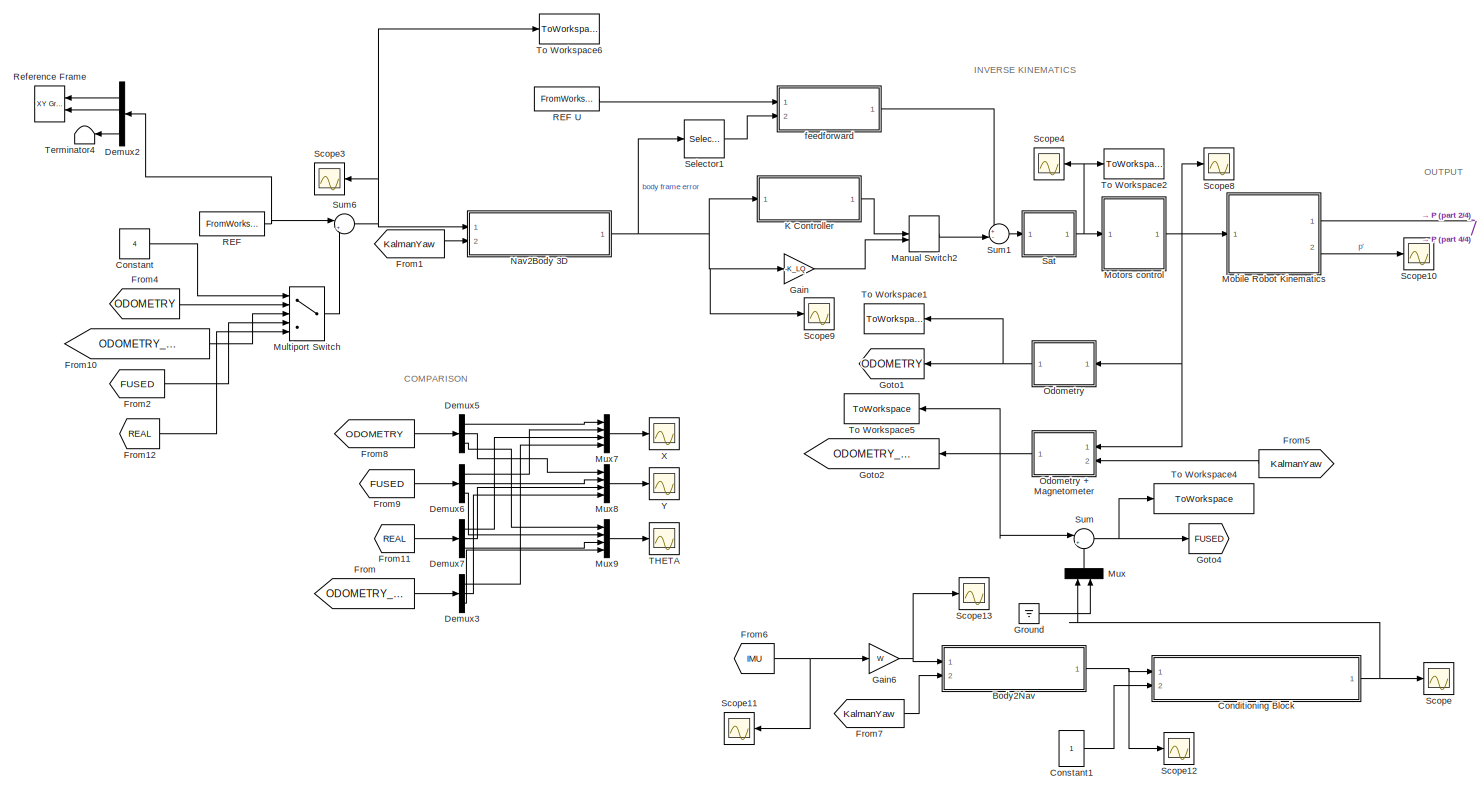
[diagram: root canvas - part 1/4, full width, top band]
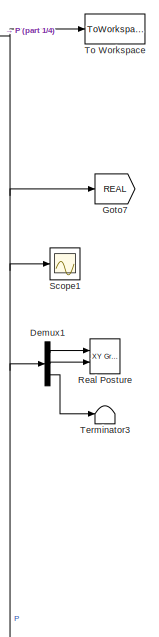
[diagram: root canvas - part 2/4, top right region]
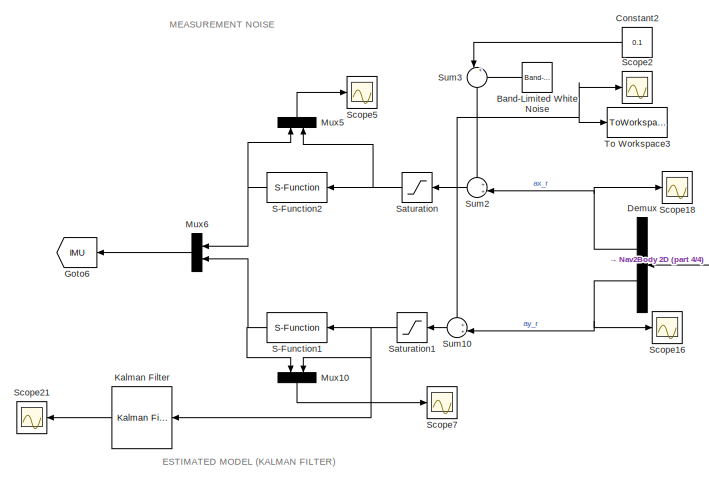
[diagram: root canvas - part 3/4, middle left region]
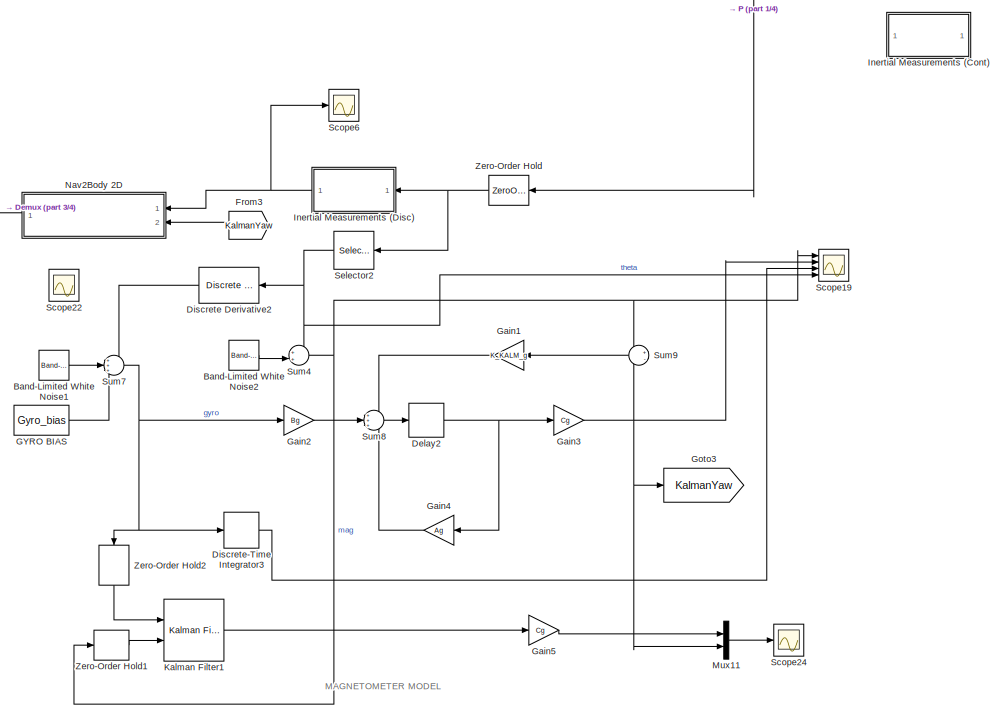
[diagram: root canvas - part 4/4, bottom right region]
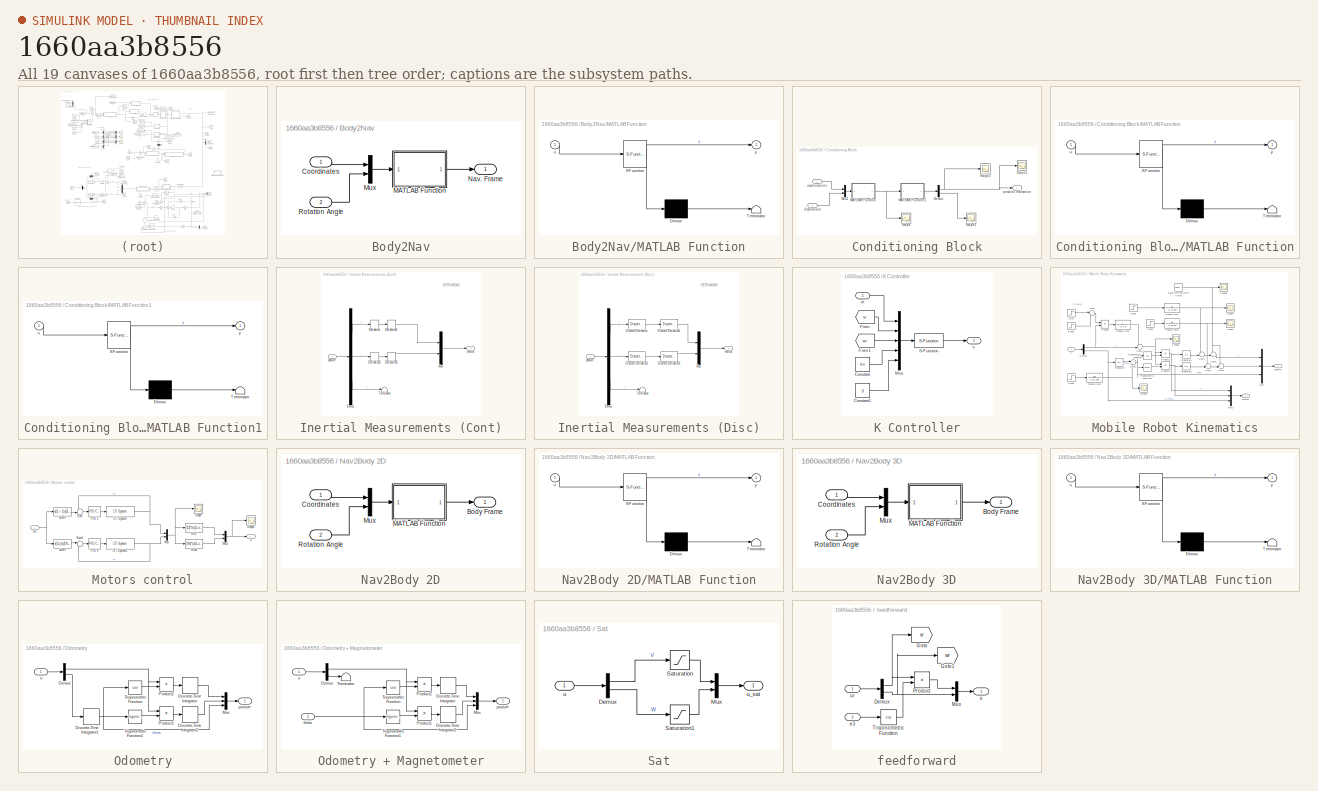
[diagram: thumbnail index - all 19 canvases of the model, root first then tree order]
MODEL slx_1660aa3b8556
KIND model
CONFIG AbsTol = auto
CONFIG EnableMultiTasking = off
CONFIG FixedStep = Ts_compute
CONFIG MaxStep = auto
CONFIG MinStep = auto
CONFIG RelTol = 1e-3
CONFIG SampleTimeConstraint = Unconstrained
CONFIG Solver = VariableStepAuto
CONFIG SolverName = VariableStepAuto
CONFIG StartTime = 0.0
CONFIG StopTime = Tsim
BLOCK [Reference] Band-Limited White Noise  REF=simulink/Sources/Band-Limited
White Noise
  Ports = [0, 1]
  SourceBlock = simulink/Sources/Band-Limited\nWhite Noise
  SourceProductBaseCode = SL
  SourceProductName = Simulink
  SourceType = Band-Limited White Noise.
BLOCK [Reference] Band-Limited White Noise1  REF=simulink/Sources/Band-Limited
White Noise
  Ports = [0, 1]
  SourceBlock = simulink/Sources/Band-Limited\nWhite Noise
  SourceProductBaseCode = SL
  SourceProductName = Simulink
  SourceType = Band-Limited White Noise.
BLOCK [Reference] Band-Limited White Noise2  REF=simulink/Sources/Band-Limited
White Noise
  Ports = [0, 1]
  SourceBlock = simulink/Sources/Band-Limited\nWhite Noise
  SourceProductBaseCode = SL
  SourceProductName = Simulink
  SourceType = Band-Limited White Noise.
BLOCK [SubSystem] Body2Nav
  Ports = [2, 1]
  RequestExecContextInheritance = off
  Variant = off
BLOCK [Inport] Body2Nav/Coordinates
  IconDisplay = Port number
BLOCK [SubSystem] Body2Nav/MATLAB Function
  ErrorFcn = Stateflow.Translate.translate
  PermitHierarchicalResolution = ExplicitOnly
  Ports = [1, 1]
  RequestExecContextInheritance = off
  SFBlockType = MATLAB Function
  TreatAsAtomicUnit = on
  Variant = off
BLOCK [Demux] Body2Nav/MATLAB Function/ Demux 
  Outputs = 1
  Ports = [1, 1]
BLOCK [S-Function] Body2Nav/MATLAB Function/ SFunction 
  EnableBusSupport = on
  FunctionName = sf_sfun
  PortCounts = [1 2]
  Ports = [1, 2]
  SFcnIsStateOwnerBlock = off
  SFunctionDeploymentMode = off
  Tag = Stateflow S-Function Robot_Sim 5
BLOCK [Terminator] Body2Nav/MATLAB Function/ Terminator 
BLOCK [Inport] Body2Nav/MATLAB Function/u
  IconDisplay = Port number
BLOCK [Outport] Body2Nav/MATLAB Function/y
  IconDisplay = Port number
BLOCK [Mux] Body2Nav/Mux
  DisplayOption = bar
  Inputs = 2
  Ports = [2, 1]
BLOCK [Outport] Body2Nav/Nav. Frame
  IconDisplay = Port number
BLOCK [Inport] Body2Nav/Rotation Angle
  IconDisplay = Port number
  Port = 2
BLOCK [SubSystem] Conditioning Block
  Ports = [2, 1]
  RequestExecContextInheritance = off
  Variant = off
BLOCK [Demux] Conditioning Block/Demux
  DisplayOption = bar
  Outputs = 2
  Ports = [1, 2]
BLOCK [SubSystem] Conditioning Block/MATLAB Function
  ErrorFcn = Stateflow.Translate.translate
  PermitHierarchicalResolution = ExplicitOnly
  Ports = [1, 1]
  RequestExecContextInheritance = off
  SFBlockType = MATLAB Function
  TreatAsAtomicUnit = on
  Variant = off
BLOCK [Demux] Conditioning Block/MATLAB Function/ Demux 
  Outputs = 1
  Ports = [1, 1]
BLOCK [S-Function] Conditioning Block/MATLAB Function/ SFunction 
  EnableBusSupport = on
  FunctionName = sf_sfun
  PortCounts = [1 2]
  Ports = [1, 2]
  SFcnIsStateOwnerBlock = off
  SFunctionDeploymentMode = off
  Tag = Stateflow S-Function Robot_Sim 3
BLOCK [Terminator] Conditioning Block/MATLAB Function/ Terminator 
BLOCK [Inport] Conditioning Block/MATLAB Function/u
  IconDisplay = Port number
BLOCK [Outport] Conditioning Block/MATLAB Function/y
  IconDisplay = Port number
BLOCK [SubSystem] Conditioning Block/MATLAB Function1
  ErrorFcn = Stateflow.Translate.translate
  PermitHierarchicalResolution = ExplicitOnly
  Ports = [1, 1]
  RequestExecContextInheritance = off
  SFBlockType = MATLAB Function
  TreatAsAtomicUnit = on
  Variant = off
BLOCK [Demux] Conditioning Block/MATLAB Function1/ Demux 
  Outputs = 1
  Ports = [1, 1]
BLOCK [S-Function] Conditioning Block/MATLAB Function1/ SFunction 
  EnableBusSupport = on
  FunctionName = sf_sfun
  PortCounts = [1 2]
  Ports = [1, 2]
  SFcnIsStateOwnerBlock = off
  SFunctionDeploymentMode = off
  Tag = Stateflow S-Function Robot_Sim 4
BLOCK [Terminator] Conditioning Block/MATLAB Function1/ Terminator 
BLOCK [Inport] Conditioning Block/MATLAB Function1/u
  IconDisplay = Port number
BLOCK [Outport] Conditioning Block/MATLAB Function1/y
  IconDisplay = Port number
BLOCK [Mux] Conditioning Block/Mux1
  DisplayOption = bar
  Inputs = 2
  Ports = [2, 1]
BLOCK [Scope] Conditioning Block/Scope
  NumInputPorts = 1
  Ports = [1]
  ScopeSpecificationString = Simulink.scopes.TimeScopeBlockCfg('CurrentConfiguration', extmgr.ConfigurationSet(extmgr.Configuration('Core','General UI',true),extmgr.Configuration('Core','Source UI',true),extmgr.Configuration('Sources','WiredSimulink',true,'DataLoggingVariableName','ScopeData2'),extmgr.Configuration('Visuals','Time Domain',true,'SerializedDisplays',{struct('MinYLimReal','-1.22416','MaxYLimReal','11.01748','YLa...<+1454ch>
BLOCK [Scope] Conditioning Block/Scope1
  NumInputPorts = 1
  Ports = [1]
  ScopeSpecificationString = Simulink.scopes.TimeScopeBlockCfg('CurrentConfiguration', extmgr.ConfigurationSet(extmgr.Configuration('Core','General UI',true),extmgr.Configuration('Core','Source UI',true),extmgr.Configuration('Sources','WiredSimulink',true,'DataLoggingVariableName','ScopeData3'),extmgr.Configuration('Visuals','Time Domain',true,'SerializedDisplays',{struct('MinYLimReal','-0.13744','MaxYLimReal','1.23697','YLab...<+1409ch>
BLOCK [Scope] Conditioning Block/Scope2
  NumInputPorts = 1
  Ports = [1]
  ScopeSpecificationString = Simulink.scopes.TimeScopeBlockCfg('CurrentConfiguration', extmgr.ConfigurationSet(extmgr.Configuration('Core','General UI',true),extmgr.Configuration('Core','Source UI',true),extmgr.Configuration('Sources','WiredSimulink',true,'DataLoggingVariableName','ScopeData6'),extmgr.Configuration('Visuals','Time Domain',true,'SerializedDisplays',{struct('MinYLimReal','-0.02497','MaxYLimReal','0.22469','YLab...<+1409ch>
BLOCK [Scope] Conditioning Block/Scope3
  NumInputPorts = 1
  Ports = [1]
  ScopeSpecificationString = Simulink.scopes.TimeScopeBlockCfg('CurrentConfiguration', extmgr.ConfigurationSet(extmgr.Configuration('Core','General UI',true),extmgr.Configuration('Core','Source UI',true),extmgr.Configuration('Sources','WiredSimulink',true,'DataLoggingVariableName','ScopeData7'),extmgr.Configuration('Visuals','Time Domain',true,'SerializedDisplays',{struct('MinYLimReal','-0.02497','MaxYLimReal','0.22469','YLab...<+1403ch>
BLOCK [Inport] Conditioning Block/accelerations
  IconDisplay = Port number
BLOCK [Inport] Conditioning Block/discriminant
  IconDisplay = Port number
  Port = 2
BLOCK [Outport] Conditioning Block/position estimation
  IconDisplay = Port number
BLOCK [Constant] Constant
  Value = 4
BLOCK [Constant] Constant1
BLOCK [Constant] Constant2
  Value = 0.1
BLOCK [Delay] Delay2
  DelayLength = 1
  InputPortMap = u0
  Ports = [1, 1]
BLOCK [Demux] Demux
  DisplayOption = bar
  Outputs = 2
  Ports = [1, 2]
BLOCK [Demux] Demux1
  DisplayOption = bar
  Outputs = 3
  Ports = [1, 3]
BLOCK [Demux] Demux2
  DisplayOption = bar
  Outputs = 3
  Ports = [1, 3]
BLOCK [Demux] Demux3
  DisplayOption = bar
  Outputs = 3
  Ports = [1, 3]
BLOCK [Demux] Demux5
  DisplayOption = bar
  Outputs = 3
  Ports = [1, 3]
BLOCK [Demux] Demux6
  DisplayOption = bar
  Outputs = 3
  Ports = [1, 3]
BLOCK [Demux] Demux7
  DisplayOption = bar
  Outputs = 3
  Ports = [1, 3]
BLOCK [Reference] Discrete Derivative2  REF=simulink/Discrete/Discrete Derivative
  Ports = [1, 1]
  SourceBlock = simulink/Discrete/Discrete Derivative
  SourceProductBaseCode = SL
  SourceProductName = Simulink
  SourceType = Discrete Derivative
BLOCK [DiscreteIntegrator] Discrete-Time Integrator3
  ICPrevOutput = DiscIntNeverNeededParam
  ICPrevScaledInput = DiscIntNeverNeededParam
  InitialConditionSetting = State (most efficient)
  Ports = [1, 1]
  SampleTime = -1
BLOCK [From] From
  GotoTag = ODOMETRY_MAG_GYRO
BLOCK [From] From1
  GotoTag = KalmanYaw
BLOCK [From] From10
  GotoTag = ODOMETRY_MAG_GYRO
BLOCK [From] From11
  GotoTag = REAL
BLOCK [From] From12
  GotoTag = REAL
BLOCK [From] From2
  GotoTag = FUSED
BLOCK [From] From3
  GotoTag = KalmanYaw
BLOCK [From] From4
  GotoTag = ODOMETRY
BLOCK [From] From5
  GotoTag = KalmanYaw
BLOCK [From] From6
  GotoTag = IMU
BLOCK [From] From7
  GotoTag = KalmanYaw
BLOCK [From] From8
  GotoTag = ODOMETRY
BLOCK [From] From9
  GotoTag = FUSED
BLOCK [Constant] GYRO BIAS
  Value = Gyro_bias
BLOCK [Gain] Gain
  Gain = -K_LQ
  Multiplication = Matrix(K*u)
  OutDataTypeStr = Inherit: Inherit via internal rule
  ParamDataTypeStr = Inherit: Inherit via internal rule
  SaturateOnIntegerOverflow = off
BLOCK [Gain] Gain1
  Gain = K_KALM_g
  Multiplication = Matrix(K*u)
  OutDataTypeStr = Inherit: Inherit via internal rule
  ParamDataTypeStr = Inherit: Inherit via internal rule
  SaturateOnIntegerOverflow = off
BLOCK [Gain] Gain2
  Gain = Bg
  Multiplication = Matrix(K*u)
  OutDataTypeStr = Inherit: Inherit via internal rule
  ParamDataTypeStr = Inherit: Inherit via internal rule
  SaturateOnIntegerOverflow = off
BLOCK [Gain] Gain3
  Gain = Cg
  Multiplication = Matrix(K*u)
  OutDataTypeStr = Inherit: Inherit via internal rule
  ParamDataTypeStr = Inherit: Inherit via internal rule
  SaturateOnIntegerOverflow = off
BLOCK [Gain] Gain4
  Gain = Ag
  Multiplication = Matrix(K*u)
  OutDataTypeStr = Inherit: Inherit via internal rule
  ParamDataTypeStr = Inherit: Inherit via internal rule
  SaturateOnIntegerOverflow = off
BLOCK [Gain] Gain5
  Gain = Cg
  Multiplication = Matrix(K*u)
  OutDataTypeStr = Inherit: Inherit via internal rule
  ParamDataTypeStr = Inherit: Inherit via internal rule
  SaturateOnIntegerOverflow = off
BLOCK [Gain] Gain6
  Gain = W
  Multiplication = Matrix(K*u)
  OutDataTypeStr = Inherit: Inherit via internal rule
  ParamDataTypeStr = Inherit: Inherit via internal rule
  SaturateOnIntegerOverflow = off
BLOCK [Goto] Goto1
  GotoTag = ODOMETRY
BLOCK [Goto] Goto2
  GotoTag = ODOMETRY_MAG_GYRO
BLOCK [Goto] Goto3
  GotoTag = KalmanYaw
BLOCK [Goto] Goto4
  GotoTag = FUSED
BLOCK [Goto] Goto6
  GotoTag = IMU
BLOCK [Goto] Goto7
  GotoTag = REAL
BLOCK [Ground] Ground
BLOCK [SubSystem] Inertial Measurements (Cont)
  Commented = on
  Ports = [1, 1]
  RequestExecContextInheritance = off
  Variant = off
BLOCK [Demux] Inertial Measurements (Cont)/Demux
  DisplayOption = bar
  Outputs = 3
  Ports = [1, 3]
BLOCK [Derivative] Inertial Measurements (Cont)/Derivative
BLOCK [Derivative] Inertial Measurements (Cont)/Derivative1
BLOCK [Derivative] Inertial Measurements (Cont)/Derivative2
BLOCK [Derivative] Inertial Measurements (Cont)/Derivative3
BLOCK [Mux] Inertial Measurements (Cont)/Mux
  DisplayOption = bar
  Inputs = 2
  Ports = [2, 1]
BLOCK [Terminator] Inertial Measurements (Cont)/Terminator
BLOCK [Outport] Inertial Measurements (Cont)/inercial
  IconDisplay = Port number
BLOCK [Inport] Inertial Measurements (Cont)/posture
  IconDisplay = Port number
BLOCK [SubSystem] Inertial Measurements (Disc)
  Ports = [1, 1]
  RequestExecContextInheritance = off
  Variant = off
BLOCK [Demux] Inertial Measurements (Disc)/Demux
  DisplayOption = bar
  Outputs = 3
  Ports = [1, 3]
BLOCK [Reference] Inertial Measurements (Disc)/Discrete Derivative  REF=simulink/Discrete/Discrete Derivative
  Ports = [1, 1]
  SourceBlock = simulink/Discrete/Discrete Derivative
  SourceProductBaseCode = SL
  SourceProductName = Simulink
  SourceType = Discrete Derivative
BLOCK [Reference] Inertial Measurements (Disc)/Discrete Derivative1  REF=simulink/Discrete/Discrete Derivative
  Ports = [1, 1]
  SourceBlock = simulink/Discrete/Discrete Derivative
  SourceProductBaseCode = SL
  SourceProductName = Simulink
  SourceType = Discrete Derivative
BLOCK [Reference] Inertial Measurements (Disc)/Discrete Derivative2  REF=simulink/Discrete/Discrete Derivative
  Ports = [1, 1]
  SourceBlock = simulink/Discrete/Discrete Derivative
  SourceProductBaseCode = SL
  SourceProductName = Simulink
  SourceType = Discrete Derivative
BLOCK [Reference] Inertial Measurements (Disc)/Discrete Derivative3  REF=simulink/Discrete/Discrete Derivative
  Ports = [1, 1]
  SourceBlock = simulink/Discrete/Discrete Derivative
  SourceProductBaseCode = SL
  SourceProductName = Simulink
  SourceType = Discrete Derivative
BLOCK [Mux] Inertial Measurements (Disc)/Mux
  DisplayOption = bar
  Inputs = 2
  Ports = [2, 1]
BLOCK [Terminator] Inertial Measurements (Disc)/Terminator
BLOCK [Outport] Inertial Measurements (Disc)/inercial
  IconDisplay = Port number
BLOCK [Inport] Inertial Measurements (Disc)/posture
  IconDisplay = Port number
BLOCK [SubSystem] K Controller
  Ports = [1, 1]
  RequestExecContextInheritance = off
  Variant = off
BLOCK [Constant] K Controller/Constant
  Value = ksi
BLOCK [Constant] K Controller/Constant1
  Value = g
BLOCK [From] K Controller/From
  GotoTag = vr
  TagVisibility = global
BLOCK [From] K Controller/From1
  GotoTag = wr
  TagVisibility = global
BLOCK [Mux] K Controller/Mux
  DisplayOption = bar
  Inputs = 5
  Ports = [5, 1]
BLOCK [S-Function] K Controller/S-Function
  EnableBusSupport = off
  FunctionName = ControllerK
  Parameters = Ts
  Ports = [1, 1]
  SFcnIsStateOwnerBlock = off
  SFunctionDeploymentMode = off
BLOCK [Inport] K Controller/er
  IconDisplay = Port number
BLOCK [Outport] K Controller/v
  IconDisplay = Port number
BLOCK [Reference] Kalman Filter  REF=ctrlSharedLib/Kalman Filter
  Commented = on
  Ports = [1, 1]
  SourceBlock = ctrlSharedLib/Kalman Filter
  SourceType = ctrlKalmanFilter
BLOCK [Reference] Kalman Filter1  REF=ctrlSharedLib/Kalman Filter
  Ports = [2, 1]
  SourceBlock = ctrlSharedLib/Kalman Filter
  SourceType = ctrlKalmanFilter
BLOCK [ManualSwitch] Manual Switch2
  CurrentSetting = 0
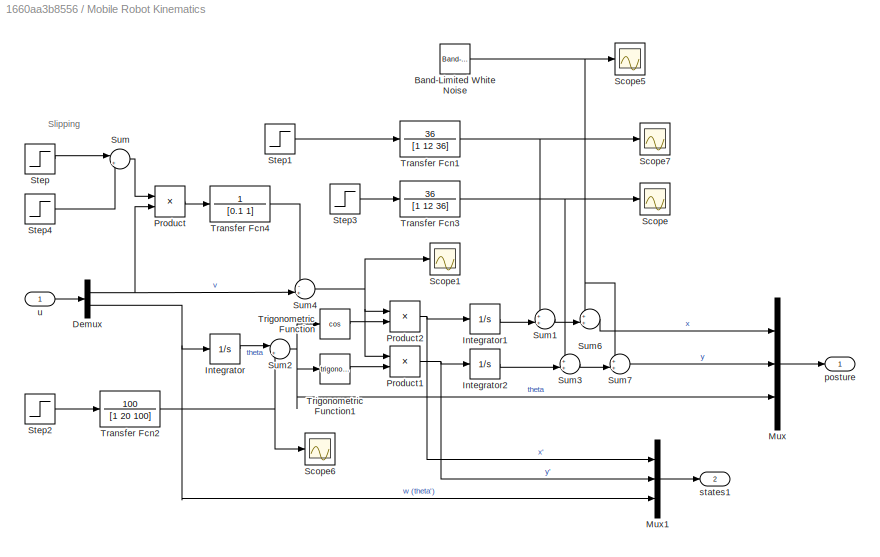
BLOCK [SubSystem] Mobile Robot Kinematics
  Ports = [1, 2]
  RequestExecContextInheritance = off
  Variant = off
BLOCK [Reference] Mobile Robot Kinematics/Band-Limited White Noise  REF=simulink/Sources/Band-Limited
White Noise
  Ports = [0, 1]
  SourceBlock = simulink/Sources/Band-Limited\nWhite Noise
  SourceProductBaseCode = SL
  SourceProductName = Simulink
  SourceType = Band-Limited White Noise.
BLOCK [Demux] Mobile Robot Kinematics/Demux
  DisplayOption = bar
  Outputs = 2
  Ports = [1, 2]
BLOCK [Integrator] Mobile Robot Kinematics/Integrator
  Ports = [1, 1]
BLOCK [Integrator] Mobile Robot Kinematics/Integrator1
  Ports = [1, 1]
BLOCK [Integrator] Mobile Robot Kinematics/Integrator2
  Ports = [1, 1]
BLOCK [Mux] Mobile Robot Kinematics/Mux
  DisplayOption = bar
  Inputs = 3
  Ports = [3, 1]
BLOCK [Mux] Mobile Robot Kinematics/Mux1
  DisplayOption = bar
  Inputs = 3
  Ports = [3, 1]
BLOCK [Product] Mobile Robot Kinematics/Product
  InputSameDT = off
  OutDataTypeStr = Inherit: Inherit via internal rule
  Ports = [2, 1]
  RndMeth = Floor
  SaturateOnIntegerOverflow = off
BLOCK [Product] Mobile Robot Kinematics/Product1
  InputSameDT = off
  OutDataTypeStr = Inherit: Inherit via internal rule
  Ports = [2, 1]
  RndMeth = Floor
  SaturateOnIntegerOverflow = off
BLOCK [Product] Mobile Robot Kinematics/Product2
  InputSameDT = off
  OutDataTypeStr = Inherit: Inherit via internal rule
  Ports = [2, 1]
  RndMeth = Floor
  SaturateOnIntegerOverflow = off
BLOCK [Scope] Mobile Robot Kinematics/Scope
  NumInputPorts = 1
  Ports = [1]
  ScopeSpecificationString = Simulink.scopes.TimeScopeBlockCfg('CurrentConfiguration', extmgr.ConfigurationSet(extmgr.Configuration('Core','General UI',true),extmgr.Configuration('Core','Source UI',true),extmgr.Configuration('Sources','WiredSimulink',true,'DataLoggingVariableName','ScopeData5'),extmgr.Configuration('Visuals','Time Domain',true,'SerializedDisplays',{struct('MinYLimReal','-0.0625','MaxYLimReal','0.5625','YLabel...<+1414ch>
BLOCK [Scope] Mobile Robot Kinematics/Scope1
  NumInputPorts = 1
  Ports = [1]
  ScopeSpecificationString = Simulink.scopes.TimeScopeBlockCfg('CurrentConfiguration', extmgr.ConfigurationSet(extmgr.Configuration('Core','General UI',true),extmgr.Configuration('Core','Source UI',true),extmgr.Configuration('Sources','WiredSimulink',true,'DataLoggingVariableName','ScopeData4'),extmgr.Configuration('Visuals','Time Domain',true,'SerializedDisplays',{struct('MinYLimReal','-0.08626','MaxYLimReal','0.76805','YLab...<+1382ch>
BLOCK [Scope] Mobile Robot Kinematics/Scope5
  NumInputPorts = 1
  Ports = [1]
  ScopeSpecificationString = Simulink.scopes.TimeScopeBlockCfg('CurrentConfiguration', extmgr.ConfigurationSet(extmgr.Configuration('Core','General UI',true),extmgr.Configuration('Core','Source UI',true),extmgr.Configuration('Sources','WiredSimulink',true,'DataLoggingVariableName','ScopeData1'),extmgr.Configuration('Visuals','Time Domain',true,'SerializedDisplays',{struct('MinYLimReal','-1.00000','MaxYLimReal','1.00000','YLab...<+1431ch>
BLOCK [Scope] Mobile Robot Kinematics/Scope6
  NumInputPorts = 1
  Ports = [1]
  ScopeSpecificationString = Simulink.scopes.TimeScopeBlockCfg('CurrentConfiguration', extmgr.ConfigurationSet(extmgr.Configuration('Core','General UI',true),extmgr.Configuration('Core','Source UI',true),extmgr.Configuration('Sources','WiredSimulink',true,'DataLoggingVariableName','ScopeData1'),extmgr.Configuration('Visuals','Time Domain',true,'SerializedDisplays',{struct('MinYLimReal','-0.0625','MaxYLimReal','0.5625','YLabel...<+1395ch>
BLOCK [Scope] Mobile Robot Kinematics/Scope7
  NumInputPorts = 1
  Ports = [1]
  ScopeSpecificationString = Simulink.scopes.TimeScopeBlockCfg('CurrentConfiguration', extmgr.ConfigurationSet(extmgr.Configuration('Core','General UI',true),extmgr.Configuration('Core','Source UI',true),extmgr.Configuration('Sources','WiredSimulink',true,'DataLoggingVariableName','ScopeData11'),extmgr.Configuration('Visuals','Time Domain',true,'SerializedDisplays',{struct('MinYLimReal','-0.06862','MaxYLimReal','0.72713','YLa...<+1421ch>
BLOCK [Step] Mobile Robot Kinematics/Step
  SampleTime = 0
  Time = 25
BLOCK [Step] Mobile Robot Kinematics/Step1
  After = 0.5
  SampleTime = 0
  Time = Tsim/2
BLOCK [Step] Mobile Robot Kinematics/Step2
  After = 0.5
  SampleTime = 0
  Time = Tsim/4
BLOCK [Step] Mobile Robot Kinematics/Step3
  After = 0.5
  SampleTime = 0
  Time = Tsim/4
BLOCK [Step] Mobile Robot Kinematics/Step4
  After = -1
  SampleTime = 0
  Time = 27
BLOCK [Sum] Mobile Robot Kinematics/Sum
  IconShape = round
  InputSameDT = off
  Inputs = |++
  OutDataTypeStr = Inherit: Inherit via internal rule
  Ports = [2, 1]
  SaturateOnIntegerOverflow = off
BLOCK [Sum] Mobile Robot Kinematics/Sum1
  IconShape = round
  InputSameDT = off
  Inputs = ++|
  OutDataTypeStr = Inherit: Inherit via internal rule
  Ports = [2, 1]
  SaturateOnIntegerOverflow = off
BLOCK [Sum] Mobile Robot Kinematics/Sum2
  IconShape = round
  InputSameDT = off
  Inputs = |++
  OutDataTypeStr = Inherit: Inherit via internal rule
  Ports = [2, 1]
  SaturateOnIntegerOverflow = off
BLOCK [Sum] Mobile Robot Kinematics/Sum3
  IconShape = round
  InputSameDT = off
  Inputs = ++|
  OutDataTypeStr = Inherit: Inherit via internal rule
  Ports = [2, 1]
  SaturateOnIntegerOverflow = off
BLOCK [Sum] Mobile Robot Kinematics/Sum4
  IconShape = round
  InputSameDT = off
  Inputs = -+|
  OutDataTypeStr = Inherit: Inherit via internal rule
  Ports = [2, 1]
  SaturateOnIntegerOverflow = off
BLOCK [Sum] Mobile Robot Kinematics/Sum6
  IconShape = round
  InputSameDT = off
  Inputs = ++|
  OutDataTypeStr = Inherit: Inherit via internal rule
  Ports = [2, 1]
  SaturateOnIntegerOverflow = off
BLOCK [Sum] Mobile Robot Kinematics/Sum7
  IconShape = round
  InputSameDT = off
  Inputs = ++|
  OutDataTypeStr = Inherit: Inherit via internal rule
  Ports = [2, 1]
  SaturateOnIntegerOverflow = off
BLOCK [TransferFcn] Mobile Robot Kinematics/Transfer Fcn1
  Denominator = [1 12 36]
  Numerator = 36
BLOCK [TransferFcn] Mobile Robot Kinematics/Transfer Fcn2
  Denominator = [1 20 100]
  Numerator = 100
BLOCK [TransferFcn] Mobile Robot Kinematics/Transfer Fcn3
  Denominator = [1 12 36]
  Numerator = 36
BLOCK [TransferFcn] Mobile Robot Kinematics/Transfer Fcn4
  Commented = on
  Denominator = [0.1 1]
  Numerator = 1
BLOCK [Trigonometry] Mobile Robot Kinematics/Trigonometric Function
  Operator = cos
  Ports = [1, 1]
BLOCK [Trigonometry] Mobile Robot Kinematics/Trigonometric Function1
  Ports = [1, 1]
BLOCK [Outport] Mobile Robot Kinematics/posture
  IconDisplay = Port number
BLOCK [Outport] Mobile Robot Kinematics/states1
  IconDisplay = Port number
  Port = 2
BLOCK [Inport] Mobile Robot Kinematics/u
  IconDisplay = Port number
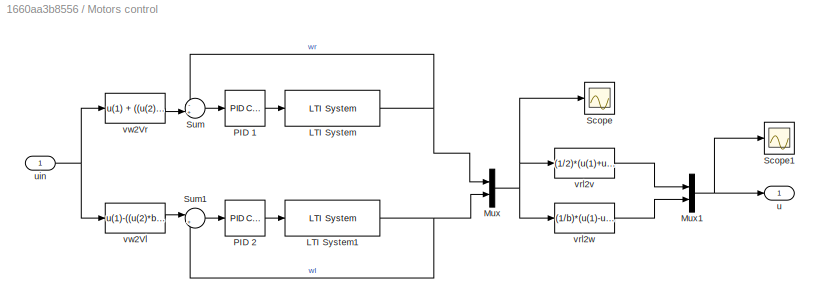
BLOCK [SubSystem] Motors control
  Ports = [1, 1]
  RequestExecContextInheritance = off
  Variant = off
BLOCK [Reference] Motors control/LTI System  REF=cstblocks/LTI System
  Ports = [1, 1]
  SourceBlock = cstblocks/LTI System
  SourceProductBaseCode = CT
  SourceProductName = Control System Toolbox
  SourceType = LTI Block
BLOCK [Reference] Motors control/LTI System1  REF=cstblocks/LTI System
  Ports = [1, 1]
  SourceBlock = cstblocks/LTI System
  SourceProductBaseCode = CT
  SourceProductName = Control System Toolbox
  SourceType = LTI Block
BLOCK [Mux] Motors control/Mux
  DisplayOption = bar
  Inputs = 2
  Ports = [2, 1]
BLOCK [Mux] Motors control/Mux1
  DisplayOption = bar
  Inputs = 2
  Ports = [2, 1]
BLOCK [Reference] Motors control/PID 1  REF=simulink/Continuous/PID Controller
  Ports = [1, 1]
  SourceBlock = simulink/Continuous/PID Controller
  SourceProductBaseCode = SL
  SourceProductName = Simulink
  SourceType = PID 1dof
BLOCK [Reference] Motors control/PID 2  REF=simulink/Continuous/PID Controller
  Ports = [1, 1]
  SourceBlock = simulink/Continuous/PID Controller
  SourceProductBaseCode = SL
  SourceProductName = Simulink
  SourceType = PID 1dof
BLOCK [Scope] Motors control/Scope
  NumInputPorts = 1
  Ports = [1]
  ScopeSpecificationString = Simulink.scopes.TimeScopeBlockCfg('CurrentConfiguration', extmgr.ConfigurationSet(extmgr.Configuration('Core','General UI',true),extmgr.Configuration('Core','Source UI',true),extmgr.Configuration('Sources','WiredSimulink',true,'DataLoggingVariableName','ScopeData5','DataLoggingSaveFormat','StructureWithTime','DataLoggingDecimation','1','DataLoggingDecimateData',true),extmgr.Configuration('Visuals'...<+1668ch>
BLOCK [Scope] Motors control/Scope1
  NumInputPorts = 1
  Ports = [1]
  ScopeSpecificationString = Simulink.scopes.TimeScopeBlockCfg('CurrentConfiguration', extmgr.ConfigurationSet(extmgr.Configuration('Core','General UI',true),extmgr.Configuration('Core','Source UI',true),extmgr.Configuration('Sources','WiredSimulink',true,'DataLoggingVariableName','ScopeData12','DataLoggingSaveFormat','StructureWithTime','DataLoggingDecimation','1','DataLoggingDecimateData',true),extmgr.Configuration('Visuals...<+1679ch>
BLOCK [Sum] Motors control/Sum
  IconShape = round
  InputSameDT = off
  Inputs = -+|
  OutDataTypeStr = Inherit: Inherit via internal rule
  Ports = [2, 1]
  SaturateOnIntegerOverflow = off
BLOCK [Sum] Motors control/Sum1
  IconShape = round
  InputSameDT = off
  Inputs = |+-
  OutDataTypeStr = Inherit: Inherit via internal rule
  Ports = [2, 1]
  SaturateOnIntegerOverflow = off
BLOCK [Outport] Motors control/u
  IconDisplay = Port number
BLOCK [Inport] Motors control/uin
  IconDisplay = Port number
BLOCK [Fcn] Motors control/vrl2v
  Expr = (1/2)*(u(1)+u(2))
BLOCK [Fcn] Motors control/vrl2w
  Expr = (1/b)*(u(1)-u(2))
BLOCK [Fcn] Motors control/vw2Vl
  Expr = u(1)-((u(2)*b)/2)
BLOCK [Fcn] Motors control/vw2Vr
  Expr = u(1) + ((u(2)*b)/2)
BLOCK [MultiPortSwitch] Multiport Switch
  InputSameDT = off
  Inputs = 4
  Ports = [5, 1]
  SaturateOnIntegerOverflow = off
BLOCK [Mux] Mux
  DisplayOption = bar
  Inputs = 2
  Ports = [2, 1]
BLOCK [Mux] Mux10
  DisplayOption = bar
  Inputs = 2
  Ports = [2, 1]
BLOCK [Mux] Mux11
  DisplayOption = bar
  Inputs = 2
  Ports = [2, 1]
BLOCK [Mux] Mux5
  DisplayOption = bar
  Inputs = 2
  Ports = [2, 1]
BLOCK [Mux] Mux6
  DisplayOption = bar
  Inputs = 2
  Ports = [2, 1]
BLOCK [Mux] Mux7
  DisplayOption = bar
  Ports = [4, 1]
BLOCK [Mux] Mux8
  DisplayOption = bar
  Ports = [4, 1]
BLOCK [Mux] Mux9
  DisplayOption = bar
  Ports = [4, 1]
BLOCK [SubSystem] Nav2Body 2D
  Ports = [2, 1]
  RequestExecContextInheritance = off
  Variant = off
BLOCK [Outport] Nav2Body 2D/Body Frame
  IconDisplay = Port number
BLOCK [Inport] Nav2Body 2D/Coordinates
  IconDisplay = Port number
BLOCK [SubSystem] Nav2Body 2D/MATLAB Function
  ErrorFcn = Stateflow.Translate.translate
  PermitHierarchicalResolution = ExplicitOnly
  Ports = [1, 1]
  RequestExecContextInheritance = off
  SFBlockType = MATLAB Function
  TreatAsAtomicUnit = on
  Variant = off
BLOCK [Demux] Nav2Body 2D/MATLAB Function/ Demux 
  Outputs = 1
  Ports = [1, 1]
BLOCK [S-Function] Nav2Body 2D/MATLAB Function/ SFunction 
  EnableBusSupport = on
  FunctionName = sf_sfun
  PortCounts = [1 2]
  Ports = [1, 2]
  SFcnIsStateOwnerBlock = off
  SFunctionDeploymentMode = off
  Tag = Stateflow S-Function Robot_Sim 2
BLOCK [Terminator] Nav2Body 2D/MATLAB Function/ Terminator 
BLOCK [Inport] Nav2Body 2D/MATLAB Function/u
  IconDisplay = Port number
BLOCK [Outport] Nav2Body 2D/MATLAB Function/y
  IconDisplay = Port number
BLOCK [Mux] Nav2Body 2D/Mux
  DisplayOption = bar
  Inputs = 2
  Ports = [2, 1]
BLOCK [Inport] Nav2Body 2D/Rotation Angle
  IconDisplay = Port number
  Port = 2
BLOCK [SubSystem] Nav2Body 3D
  Ports = [2, 1]
  RequestExecContextInheritance = off
  Variant = off
BLOCK [Outport] Nav2Body 3D/Body Frame
  IconDisplay = Port number
BLOCK [Inport] Nav2Body 3D/Coordinates
  IconDisplay = Port number
BLOCK [SubSystem] Nav2Body 3D/MATLAB Function
  ErrorFcn = Stateflow.Translate.translate
  PermitHierarchicalResolution = ExplicitOnly
  Ports = [1, 1]
  RequestExecContextInheritance = off
  SFBlockType = MATLAB Function
  TreatAsAtomicUnit = on
  Variant = off
BLOCK [Demux] Nav2Body 3D/MATLAB Function/ Demux 
  Outputs = 1
  Ports = [1, 1]
BLOCK [S-Function] Nav2Body 3D/MATLAB Function/ SFunction 
  EnableBusSupport = on
  FunctionName = sf_sfun
  PortCounts = [1 2]
  Ports = [1, 2]
  SFcnIsStateOwnerBlock = off
  SFunctionDeploymentMode = off
  Tag = Stateflow S-Function Robot_Sim 1
BLOCK [Terminator] Nav2Body 3D/MATLAB Function/ Terminator 
BLOCK [Inport] Nav2Body 3D/MATLAB Function/u
  IconDisplay = Port number
BLOCK [Outport] Nav2Body 3D/MATLAB Function/y
  IconDisplay = Port number
BLOCK [Mux] Nav2Body 3D/Mux
  DisplayOption = bar
  Inputs = 2
  Ports = [2, 1]
BLOCK [Inport] Nav2Body 3D/Rotation Angle
  IconDisplay = Port number
  Port = 2
BLOCK [SubSystem] Odometry
  Ports = [1, 1]
  RequestExecContextInheritance = off
  Variant = off
BLOCK [SubSystem] Odometry + Magnetometer
  Ports = [2, 1]
  RequestExecContextInheritance = off
  Variant = off
BLOCK [Demux] Odometry + Magnetometer/Demux
  DisplayOption = bar
  Outputs = 2
  Ports = [1, 2]
BLOCK [DiscreteIntegrator] Odometry + Magnetometer/Discrete-Time Integrator
  ICPrevOutput = DiscIntNeverNeededParam
  ICPrevScaledInput = DiscIntNeverNeededParam
  InitialConditionSetting = State (most efficient)
  Ports = [1, 1]
  SampleTime = Ts
BLOCK [DiscreteIntegrator] Odometry + Magnetometer/Discrete-Time Integrator2
  ICPrevOutput = DiscIntNeverNeededParam
  ICPrevScaledInput = DiscIntNeverNeededParam
  InitialConditionSetting = State (most efficient)
  Ports = [1, 1]
  SampleTime = Ts
BLOCK [Mux] Odometry + Magnetometer/Mux
  DisplayOption = bar
  Inputs = 3
  Ports = [3, 1]
BLOCK [Product] Odometry + Magnetometer/Product1
  InputSameDT = off
  OutDataTypeStr = Inherit: Inherit via internal rule
  Ports = [2, 1]
  RndMeth = Floor
  SaturateOnIntegerOverflow = off
BLOCK [Product] Odometry + Magnetometer/Product2
  InputSameDT = off
  OutDataTypeStr = Inherit: Inherit via internal rule
  Ports = [2, 1]
  RndMeth = Floor
  SaturateOnIntegerOverflow = off
BLOCK [Terminator] Odometry + Magnetometer/Terminator
BLOCK [Trigonometry] Odometry + Magnetometer/Trigonometric Function
  Operator = cos
  Ports = [1, 1]
BLOCK [Trigonometry] Odometry + Magnetometer/Trigonometric Function1
  Ports = [1, 1]
BLOCK [Outport] Odometry + Magnetometer/posture
  IconDisplay = Port number
BLOCK [Inport] Odometry + Magnetometer/theta
  IconDisplay = Port number
  Port = 2
BLOCK [Inport] Odometry + Magnetometer/u
  IconDisplay = Port number
BLOCK [Demux] Odometry/Demux
  DisplayOption = bar
  Outputs = 2
  Ports = [1, 2]
BLOCK [DiscreteIntegrator] Odometry/Discrete-Time Integrator
  ICPrevOutput = DiscIntNeverNeededParam
  ICPrevScaledInput = DiscIntNeverNeededParam
  InitialConditionSetting = State (most efficient)
  Ports = [1, 1]
  SampleTime = Ts
BLOCK [DiscreteIntegrator] Odometry/Discrete-Time Integrator1
  ICPrevOutput = DiscIntNeverNeededParam
  ICPrevScaledInput = DiscIntNeverNeededParam
  InitialConditionSetting = State (most efficient)
  Ports = [1, 1]
  SampleTime = Ts
BLOCK [DiscreteIntegrator] Odometry/Discrete-Time Integrator2
  ICPrevOutput = DiscIntNeverNeededParam
  ICPrevScaledInput = DiscIntNeverNeededParam
  InitialConditionSetting = State (most efficient)
  Ports = [1, 1]
  SampleTime = Ts
BLOCK [Mux] Odometry/Mux
  DisplayOption = bar
  Inputs = 3
  Ports = [3, 1]
BLOCK [Product] Odometry/Product1
  InputSameDT = off
  OutDataTypeStr = Inherit: Inherit via internal rule
  Ports = [2, 1]
  RndMeth = Floor
  SaturateOnIntegerOverflow = off
BLOCK [Product] Odometry/Product2
  InputSameDT = off
  OutDataTypeStr = Inherit: Inherit via internal rule
  Ports = [2, 1]
  RndMeth = Floor
  SaturateOnIntegerOverflow = off
BLOCK [Trigonometry] Odometry/Trigonometric Function
  Operator = cos
  Ports = [1, 1]
BLOCK [Trigonometry] Odometry/Trigonometric Function1
  Ports = [1, 1]
BLOCK [Outport] Odometry/posture
  IconDisplay = Port number
BLOCK [Inport] Odometry/u
  IconDisplay = Port number
BLOCK [FromWorkspace] REF
  OutputAfterFinalValue = Holding final value
  SampleTime = Ts
  VariableName = XrSIM
  ZeroCross = on
BLOCK [FromWorkspace] REF U
  OutputAfterFinalValue = Holding final value
  SampleTime = Ts
  VariableName = UrSIM
  ZeroCross = on
BLOCK [Reference] Real Posture  REF=simulink/Sinks/XY Graph
  Commented = on
  Ports = [2]
  SourceBlock = simulink/Sinks/XY Graph
  SourceProductBaseCode = SL
  SourceProductName = Simulink
  SourceType = XY scope.
BLOCK [Reference] Reference Frame  REF=simulink/Sinks/XY Graph
  Commented = on
  Ports = [2]
  SourceBlock = simulink/Sinks/XY Graph
  SourceProductBaseCode = SL
  SourceProductName = Simulink
  SourceType = XY scope.
BLOCK [S-Function] S-Function1
  EnableBusSupport = off
  FunctionName = Kalman
  Parameters = Ts_sensor,A,C,Rw,Rv
  Ports = [1, 1]
  SFcnIsStateOwnerBlock = off
  SFunctionDeploymentMode = off
BLOCK [S-Function] S-Function2
  EnableBusSupport = off
  FunctionName = Kalman
  Parameters = Ts_sensor,A,C,Rw,Rv
  Ports = [1, 1]
  SFcnIsStateOwnerBlock = off
  SFunctionDeploymentMode = off
BLOCK [SubSystem] Sat
  Ports = [1, 1]
  RequestExecContextInheritance = off
  Variant = off
BLOCK [Demux] Sat/Demux
  DisplayOption = bar
  Outputs = 2
  Ports = [1, 2]
BLOCK [Mux] Sat/Mux
  DisplayOption = bar
  Inputs = 2
  Ports = [2, 1]
BLOCK [Saturate] Sat/Saturation
  InputPortMap = u0
  LowerLimit = 0
  Ports = [1, 1]
  UpperLimit = 0.4
BLOCK [Saturate] Sat/Saturation1
  InputPortMap = u0
  LowerLimit = -0.8
  Ports = [1, 1]
  UpperLimit = 0.8
BLOCK [Inport] Sat/u
  IconDisplay = Port number
BLOCK [Outport] Sat/u_sat
  IconDisplay = Port number
BLOCK [Saturate] Saturation
  InputPortMap = u0
  LowerLimit = -4*9.8
  Ports = [1, 1]
  UpperLimit = 4*9.8
BLOCK [Saturate] Saturation1
  InputPortMap = u0
  LowerLimit = -4*9.8
  Ports = [1, 1]
  UpperLimit = 4*9.8
BLOCK [Scope] Scope
  NumInputPorts = 1
  Ports = [1]
  ScopeSpecificationString = Simulink.scopes.TimeScopeBlockCfg('CurrentConfiguration', extmgr.ConfigurationSet(extmgr.Configuration('Core','General UI',true),extmgr.Configuration('Core','Source UI',true),extmgr.Configuration('Sources','WiredSimulink',true,'DataLoggingVariableName','ScopeData4'),extmgr.Configuration('Visuals','Time Domain',true,'SerializedDisplays',{struct('MinYLimReal','-0.03621','MaxYLimReal','0.32593','YLab...<+1455ch>
BLOCK [Scope] Scope1
  NumInputPorts = 1
  Ports = [1]
  ScopeSpecificationString = Simulink.scopes.TimeScopeBlockCfg('CurrentConfiguration', extmgr.ConfigurationSet(extmgr.Configuration('Core','General UI',true),extmgr.Configuration('Core','Source UI',true),extmgr.Configuration('Sources','WiredSimulink',true,'DataLoggingVariableName','ScopeData2'),extmgr.Configuration('Visuals','Time Domain',true,'SerializedDisplays',{struct('MinYLimReal','-3.00614','MaxYLimReal','7.77278','YLab...<+1421ch>
BLOCK [Scope] Scope10
  NumInputPorts = 1
  Ports = [1]
  ScopeSpecificationString = Simulink.scopes.TimeScopeBlockCfg('CurrentConfiguration', extmgr.ConfigurationSet(extmgr.Configuration('Core','General UI',true),extmgr.Configuration('Core','Source UI',true),extmgr.Configuration('Sources','WiredSimulink',true,'DataLoggingVariableName','ScopeData2'),extmgr.Configuration('Visuals','Time Domain',true,'SerializedDisplays',{struct('MinYLimReal','-1.02926','MaxYLimReal','1.10002','YLab...<+1462ch>
BLOCK [Scope] Scope11
  NumInputPorts = 1
  Ports = [1]
  ScopeSpecificationString = Simulink.scopes.TimeScopeBlockCfg('CurrentConfiguration', extmgr.ConfigurationSet(extmgr.Configuration('Core','General UI',true),extmgr.Configuration('Core','Source UI',true),extmgr.Configuration('Sources','WiredSimulink',true,'DataLoggingVariableName','ScopeData1'),extmgr.Configuration('Visuals','Time Domain',true,'SerializedDisplays',{struct('MinYLimReal','-1.38856','MaxYLimReal','5.04173','YLab...<+1432ch>
BLOCK [Scope] Scope12
  NumInputPorts = 1
  Ports = [1]
  ScopeSpecificationString = Simulink.scopes.TimeScopeBlockCfg('CurrentConfiguration', extmgr.ConfigurationSet(extmgr.Configuration('Core','General UI',true),extmgr.Configuration('Core','Source UI',true),extmgr.Configuration('Sources','WiredSimulink',true,'DataLoggingVariableName','ScopeData5'),extmgr.Configuration('Visuals','Time Domain',true,'SerializedDisplays',{struct('MinYLimReal','-1.01187','MaxYLimReal','0.92701','YLab...<+1430ch>
BLOCK [Scope] Scope13
  NumInputPorts = 1
  Ports = [1]
  ScopeSpecificationString = Simulink.scopes.TimeScopeBlockCfg('CurrentConfiguration', extmgr.ConfigurationSet(extmgr.Configuration('Core','General UI',true),extmgr.Configuration('Core','Source UI',true),extmgr.Configuration('Sources','WiredSimulink',true,'DataLoggingVariableName','ScopeData8'),extmgr.Configuration('Visuals','Time Domain',true,'SerializedDisplays',{struct('MinYLimReal','-3.85424','MaxYLimReal','11.30815','YLa...<+1409ch>
BLOCK [Scope] Scope16
  NumInputPorts = 1
  Ports = [1]
  ScopeSpecificationString = Simulink.scopes.TimeScopeBlockCfg('CurrentConfiguration', extmgr.ConfigurationSet(extmgr.Configuration('Core','General UI',true),extmgr.Configuration('Core','Source UI',true),extmgr.Configuration('Sources','WiredSimulink',true,'DataLoggingVariableName','ScopeData1'),extmgr.Configuration('Visuals','Time Domain',true,'SerializedDisplays',{struct('MinYLimReal','-3.77689','MaxYLimReal','13.58463','YLa...<+1438ch>
BLOCK [Scope] Scope18
  NumInputPorts = 1
  Ports = [1]
  ScopeSpecificationString = Simulink.scopes.TimeScopeBlockCfg('CurrentConfiguration', extmgr.ConfigurationSet(extmgr.Configuration('Core','General UI',true),extmgr.Configuration('Core','Source UI',true),extmgr.Configuration('Sources','WiredSimulink',true,'DataLoggingVariableName','ScopeData3'),extmgr.Configuration('Visuals','Time Domain',true,'SerializedDisplays',{struct('MinYLimReal','-2.44945','MaxYLimReal','8.76488','YLab...<+1434ch>
BLOCK [Scope] Scope19
  NumInputPorts = 4
  Ports = [4]
  ScopeSpecificationString = Simulink.scopes.TimeScopeBlockCfg('CurrentConfiguration', extmgr.ConfigurationSet(extmgr.Configuration('Core','General UI',true),extmgr.Configuration('Core','Source UI',true),extmgr.Configuration('Sources','WiredSimulink',true,'DataLoggingVariableName','ScopeData1'),extmgr.Configuration('Visuals','Time Domain',true,'SerializedDisplays',{struct('MinYLimReal','-3.36762','MaxYLimReal','1.34717','YLab...<+1439ch>
BLOCK [Scope] Scope2
  NumInputPorts = 1
  Ports = [1]
  ScopeSpecificationString = Simulink.scopes.TimeScopeBlockCfg('CurrentConfiguration', extmgr.ConfigurationSet(extmgr.Configuration('Core','General UI',true),extmgr.Configuration('Core','Source UI',true),extmgr.Configuration('Sources','WiredSimulink',true,'DataLoggingVariableName','ScopeData1'),extmgr.Configuration('Visuals','Time Domain',true,'SerializedDisplays',{struct('MinYLimReal','-0.16082','MaxYLimReal','0.1728','YLabe...<+1413ch>
BLOCK [Scope] Scope21
  NumInputPorts = 1
  Ports = [1]
  ScopeSpecificationString = Simulink.scopes.TimeScopeBlockCfg('CurrentConfiguration', extmgr.ConfigurationSet(extmgr.Configuration('Core','General UI',true),extmgr.Configuration('Core','Source UI',true),extmgr.Configuration('Sources','WiredSimulink',true,'DataLoggingVariableName','ScopeData12'),extmgr.Configuration('Visuals','Time Domain',true,'SerializedDisplays',{struct('MinYLimReal','-1.00000','MaxYLimReal','1.00000','YLa...<+1402ch>
BLOCK [Scope] Scope22
  NumInputPorts = 1
  Ports = [1]
  ScopeSpecificationString = Simulink.scopes.TimeScopeBlockCfg('CurrentConfiguration', extmgr.ConfigurationSet(extmgr.Configuration('Core','General UI',true),extmgr.Configuration('Core','Source UI',true),extmgr.Configuration('Sources','WiredSimulink',true,'DataLoggingVariableName','ScopeData7'),extmgr.Configuration('Visuals','Time Domain',true,'SerializedDisplays',{struct('MinYLimReal','-0.74136','MaxYLimReal','2.12276','YLab...<+1442ch>
BLOCK [Scope] Scope24
  NumInputPorts = 1
  Ports = [1]
  ScopeSpecificationString = Simulink.scopes.TimeScopeBlockCfg('CurrentConfiguration', extmgr.ConfigurationSet(extmgr.Configuration('Core','General UI',true),extmgr.Configuration('Core','Source UI',true),extmgr.Configuration('Sources','WiredSimulink',true,'DataLoggingVariableName','ScopeData13'),extmgr.Configuration('Visuals','Time Domain',true,'SerializedDisplays',{struct('MinYLimReal','-2.85783','MaxYLimReal','1.22574','YLa...<+1460ch>
BLOCK [Scope] Scope3
  NumInputPorts = 1
  Ports = [1]
  ScopeSpecificationString = Simulink.scopes.TimeScopeBlockCfg('CurrentConfiguration', extmgr.ConfigurationSet(extmgr.Configuration('Core','General UI',true),extmgr.Configuration('Core','Source UI',true),extmgr.Configuration('Sources','WiredSimulink',true,'DataLoggingVariableName','ScopeData3'),extmgr.Configuration('Visuals','Time Domain',true,'SerializedDisplays',{struct('MinYLimReal','-0.17325','MaxYLimReal','0.11716','YLab...<+1455ch>
BLOCK [Scope] Scope4
  NumInputPorts = 1
  Ports = [1]
  ScopeSpecificationString = Simulink.scopes.TimeScopeBlockCfg('CurrentConfiguration', extmgr.ConfigurationSet(extmgr.Configuration('Core','General UI',true),extmgr.Configuration('Core','Source UI',true),extmgr.Configuration('Sources','WiredSimulink',true,'DataLoggingVariableName','ScopeData1'),extmgr.Configuration('Visuals','Time Domain',true,'SerializedDisplays',{struct('MinYLimReal','-1.00000','MaxYLimReal','1.00000','YLab...<+1445ch>
BLOCK [Scope] Scope5
  NumInputPorts = 1
  Ports = [1]
  ScopeSpecificationString = Simulink.scopes.TimeScopeBlockCfg('CurrentConfiguration', extmgr.ConfigurationSet(extmgr.Configuration('Core','General UI',true),extmgr.Configuration('Core','Source UI',true),extmgr.Configuration('Sources','WiredSimulink',true,'DataLoggingVariableName','ScopeData2'),extmgr.Configuration('Visuals','Time Domain',true,'SerializedDisplays',{struct('MinYLimReal','-2.42321','MaxYLimReal','8.95449','YLab...<+1471ch>
BLOCK [Scope] Scope6
  NumInputPorts = 1
  Ports = [1]
  ScopeSpecificationString = Simulink.scopes.TimeScopeBlockCfg('CurrentConfiguration', extmgr.ConfigurationSet(extmgr.Configuration('Core','General UI',true),extmgr.Configuration('Core','Source UI',true),extmgr.Configuration('Sources','WiredSimulink',true,'DataLoggingVariableName','ScopeData14'),extmgr.Configuration('Visuals','Time Domain',true,'SerializedDisplays',{struct('MinYLimReal','-1.705','MaxYLimReal','2.66307','YLabe...<+1467ch>
BLOCK [Scope] Scope7
  NumInputPorts = 1
  Ports = [1]
  ScopeSpecificationString = Simulink.scopes.TimeScopeBlockCfg('CurrentConfiguration', extmgr.ConfigurationSet(extmgr.Configuration('Core','General UI',true),extmgr.Configuration('Core','Source UI',true),extmgr.Configuration('Sources','WiredSimulink',true,'DataLoggingVariableName','ScopeData3'),extmgr.Configuration('Visuals','Time Domain',true,'SerializedDisplays',{struct('MinYLimReal','-0.76216','MaxYLimReal','0.923','YLabel...<+1462ch>
BLOCK [Scope] Scope8
  NumInputPorts = 1
  Ports = [1]
  ScopeSpecificationString = Simulink.scopes.TimeScopeBlockCfg('CurrentConfiguration', extmgr.ConfigurationSet(extmgr.Configuration('Core','General UI',true),extmgr.Configuration('Core','Source UI',true),extmgr.Configuration('Sources','WiredSimulink',true,'DataLoggingVariableName','ScopeData8'),extmgr.Configuration('Visuals','Time Domain',true,'SerializedDisplays',{struct('MinYLimReal','-1.1075','MaxYLimReal','1.10872','YLabe...<+1447ch>
BLOCK [Scope] Scope9
  NumInputPorts = 1
  Ports = [1]
  ScopeSpecificationString = Simulink.scopes.TimeScopeBlockCfg('CurrentConfiguration', extmgr.ConfigurationSet(extmgr.Configuration('Core','General UI',true),extmgr.Configuration('Core','Source UI',true),extmgr.Configuration('Sources','WiredSimulink',true,'DataLoggingVariableName','ScopeData1'),extmgr.Configuration('Visuals','Time Domain',true,'SerializedDisplays',{struct('MinYLimReal','-1.96841','MaxYLimReal','1.92219','YLab...<+1439ch>
BLOCK [Selector] Selector1
  IndexOptions = Index vector (dialog)
  Indices = 3
  InputPortWidth = 3
  OutputSizes = 1
  Ports = [1, 1]
BLOCK [Selector] Selector2
  IndexOptions = Index vector (dialog)
  Indices = 3
  InputPortWidth = 3
  OutputSizes = 1
  Ports = [1, 1]
BLOCK [Sum] Sum
  IconShape = round
  InputSameDT = off
  Inputs = |++
  OutDataTypeStr = Inherit: Inherit via internal rule
  Ports = [2, 1]
  SaturateOnIntegerOverflow = off
BLOCK [Sum] Sum1
  IconShape = round
  InputSameDT = off
  Inputs = +-|
  OutDataTypeStr = Inherit: Inherit via internal rule
  Ports = [2, 1]
  SaturateOnIntegerOverflow = off
BLOCK [Sum] Sum10
  IconShape = round
  InputSameDT = off
  Inputs = ++|
  OutDataTypeStr = Inherit: Inherit via internal rule
  Ports = [2, 1]
  SaturateOnIntegerOverflow = off
BLOCK [Sum] Sum2
  IconShape = round
  InputSameDT = off
  Inputs = ++|
  OutDataTypeStr = Inherit: Inherit via internal rule
  Ports = [2, 1]
  SaturateOnIntegerOverflow = off
BLOCK [Sum] Sum3
  IconShape = round
  InputSameDT = off
  Inputs = |++
  OutDataTypeStr = Inherit: Inherit via internal rule
  Ports = [2, 1]
  SaturateOnIntegerOverflow = off
BLOCK [Sum] Sum4
  IconShape = round
  InputSameDT = off
  Inputs = ++|
  OutDataTypeStr = Inherit: Inherit via internal rule
  Ports = [2, 1]
  SaturateOnIntegerOverflow = off
BLOCK [Sum] Sum6
  IconShape = round
  InputSameDT = off
  Inputs = |+-
  OutDataTypeStr = Inherit: Inherit via internal rule
  Ports = [2, 1]
  SaturateOnIntegerOverflow = off
BLOCK [Sum] Sum7
  IconShape = round
  InputSameDT = off
  Inputs = +++
  OutDataTypeStr = Inherit: Inherit via internal rule
  Ports = [3, 1]
  SaturateOnIntegerOverflow = off
BLOCK [Sum] Sum8
  IconShape = round
  InputSameDT = off
  Inputs = +++
  OutDataTypeStr = Inherit: Inherit via internal rule
  Ports = [3, 1]
  SaturateOnIntegerOverflow = off
BLOCK [Sum] Sum9
  IconShape = round
  InputSameDT = off
  Inputs = +-
  OutDataTypeStr = Inherit: Inherit via internal rule
  Ports = [2, 1]
  SaturateOnIntegerOverflow = off
BLOCK [Scope] THETA
  NumInputPorts = 1
  Ports = [1]
  ScopeSpecificationString = Simulink.scopes.TimeScopeBlockCfg('CurrentConfiguration', extmgr.ConfigurationSet(extmgr.Configuration('Core','General UI',true),extmgr.Configuration('Core','Source UI',true),extmgr.Configuration('Sources','WiredSimulink',true,'DataLoggingVariableName','ScopeData5'),extmgr.Configuration('Visuals','Time Domain',true,'SerializedDisplays',{struct('MinYLimReal','-2.8325','MaxYLimReal','0.7718','YLabel...<+1501ch>
BLOCK [Terminator] Terminator3
BLOCK [Terminator] Terminator4
BLOCK [ToWorkspace] To Workspace
  FixptAsFi = on
  MaxDataPoints = inf
  Ports = [1]
  SampleTime = -1
  Save2DSignal = 3-D array (concatenate along third dimension)
  SaveFormat = Timeseries
  VariableName = posture
BLOCK [ToWorkspace] To Workspace1
  FixptAsFi = on
  MaxDataPoints = inf
  Ports = [1]
  SampleTime = -1
  Save2DSignal = 3-D array (concatenate along third dimension)
  SaveFormat = Timeseries
  VariableName = odometry
BLOCK [ToWorkspace] To Workspace2
  FixptAsFi = on
  MaxDataPoints = inf
  Ports = [1]
  SampleTime = -1
  Save2DSignal = 3-D array (concatenate along third dimension)
  SaveFormat = Timeseries
  VariableName = control
BLOCK [ToWorkspace] To Workspace3
  FixptAsFi = on
  MaxDataPoints = inf
  Ports = [1]
  SampleTime = -1
  Save2DSignal = 3-D array (concatenate along third dimension)
  SaveFormat = Timeseries
  VariableName = noise
BLOCK [ToWorkspace] To Workspace4
  FixptAsFi = on
  MaxDataPoints = inf
  Ports = [1]
  SampleTime = -1
  Save2DSignal = 3-D array (concatenate along third dimension)
  SaveFormat = Timeseries
  VariableName = odometry_mag_acc
BLOCK [ToWorkspace] To Workspace5
  FixptAsFi = on
  MaxDataPoints = inf
  Ports = [1]
  SampleTime = -1
  Save2DSignal = 3-D array (concatenate along third dimension)
  SaveFormat = Timeseries
  VariableName = odometry_mag
BLOCK [ToWorkspace] To Workspace6
  FixptAsFi = on
  MaxDataPoints = inf
  Ports = [1]
  SampleTime = -1
  Save2DSignal = 3-D array (concatenate along third dimension)
  SaveFormat = Timeseries
  VariableName = errors
BLOCK [Scope] X
  NumInputPorts = 1
  Ports = [1]
  ScopeSpecificationString = Simulink.scopes.TimeScopeBlockCfg('CurrentConfiguration', extmgr.ConfigurationSet(extmgr.Configuration('Core','General UI',true),extmgr.Configuration('Core','Source UI',true),extmgr.Configuration('Sources','WiredSimulink',true,'DataLoggingVariableName','ScopeData3'),extmgr.Configuration('Visuals','Time Domain',true,'SerializedDisplays',{struct('MinYLimReal','-1.81838','MaxYLimReal','16.36541','YLa...<+1510ch>
BLOCK [Scope] Y
  NumInputPorts = 1
  Ports = [1]
  ScopeSpecificationString = Simulink.scopes.TimeScopeBlockCfg('CurrentConfiguration', extmgr.ConfigurationSet(extmgr.Configuration('Core','General UI',true),extmgr.Configuration('Core','Source UI',true),extmgr.Configuration('Sources','WiredSimulink',true,'DataLoggingVariableName','ScopeData4'),extmgr.Configuration('Visuals','Time Domain',true,'SerializedDisplays',{struct('MinYLimReal','-3.16615','MaxYLimReal','0.9435','YLabe...<+1505ch>
BLOCK [ZeroOrderHold] Zero-Order Hold
  SampleTime = Ts_sensor
BLOCK [ZeroOrderHold] Zero-Order Hold1
  SampleTime = Ts_sensor
BLOCK [ZeroOrderHold] Zero-Order Hold2
  SampleTime = Ts_sensor
BLOCK [SubSystem] feedforward
  Ports = [2, 1]
  RequestExecContextInheritance = off
  Variant = off
BLOCK [Demux] feedforward/Demux
  DisplayOption = bar
  Outputs = 2
  Ports = [1, 2]
BLOCK [Goto] feedforward/Goto
  GotoTag = vr
  TagVisibility = global
BLOCK [Goto] feedforward/Goto1
  GotoTag = wr
  TagVisibility = global
BLOCK [Mux] feedforward/Mux
  DisplayOption = bar
  Inputs = 2
  Ports = [2, 1]
BLOCK [Product] feedforward/Product
  InputSameDT = off
  OutDataTypeStr = Inherit: Inherit via internal rule
  Ports = [2, 1]
  RndMeth = Floor
  SaturateOnIntegerOverflow = off
BLOCK [Trigonometry] feedforward/Trigonometric Function
  Operator = cos
  Ports = [1, 1]
BLOCK [Inport] feedforward/e3
  IconDisplay = Port number
  Port = 2
BLOCK [Outport] feedforward/u
  IconDisplay = Port number
BLOCK [Inport] feedforward/ur
  IconDisplay = Port number
ANNOTATION (root): OUTPUT
ANNOTATION (root): COMPARISON
ANNOTATION (root): MEASUREMENT NOISE
ANNOTATION (root): ESTIMATED MODEL (KALMAN FILTER)
ANNOTATION (root): INVERSE KINEMATICS
ANNOTATION (root): MAGNETOMETER MODEL
ANNOTATION Inertial Measurements (Cont): DERIVADAS
ANNOTATION Inertial Measurements (Disc): DERIVADAS
ANNOTATION Mobile Robot Kinematics: Slipping
LINE Band-Limited White Noise1:1 -> Sum7:2
LINE Band-Limited White Noise2:1 -> Sum4:2
LINE Band-Limited White Noise:1 -> Sum3:2
LINE Body2Nav/Coordinates:1 -> Body2Nav/Mux:1
LINE Body2Nav/MATLAB Function:1 -> Body2Nav/Nav. Frame:1
LINE Body2Nav/Mux:1 -> Body2Nav/MATLAB Function:1
LINE Body2Nav/Rotation Angle:1 -> Body2Nav/Mux:2
NET Body2Nav:1 -> Conditioning Block:1, Scope12:1
NET Conditioning Block/Demux:1 -> Conditioning Block/Scope2:1, Conditioning Block/Scope3:1, Conditioning Block/position estimation:1
LINE Conditioning Block/Demux:2 -> Conditioning Block/Scope1:1
LINE Conditioning Block/MATLAB Function1:1 -> Conditioning Block/Demux:1
NET Conditioning Block/MATLAB Function:1 -> Conditioning Block/MATLAB Function1:1, Conditioning Block/Scope:1
LINE Conditioning Block/Mux1:1 -> Conditioning Block/MATLAB Function:1
LINE Conditioning Block/accelerations:1 -> Conditioning Block/Mux1:1
LINE Conditioning Block/discriminant:1 -> Conditioning Block/Mux1:2
NET Conditioning Block:1 -> Mux:1, Scope:1
LINE Constant1:1 -> Conditioning Block:2
LINE Constant2:1 -> Sum3:1
LINE Constant:1 -> Multiport Switch:1
NET Delay2:1 -> Gain3:1, Gain4:1
LINE Demux1:1 -> Real Posture:1
LINE Demux1:2 -> Real Posture:2
LINE Demux1:3 -> Terminator3:1
LINE Demux2:1 -> Reference Frame:1
LINE Demux2:2 -> Reference Frame:2
LINE Demux2:3 -> Terminator4:1
LINE Demux3:1 -> Mux7:4
LINE Demux3:2 -> Mux8:4
LINE Demux3:3 -> Mux9:4
LINE Demux5:1 -> Mux7:1
LINE Demux5:2 -> Mux8:1
LINE Demux5:3 -> Mux9:1
LINE Demux6:1 -> Mux7:2
LINE Demux6:2 -> Mux8:2
LINE Demux6:3 -> Mux9:2
LINE Demux7:1 -> Mux7:3
LINE Demux7:2 -> Mux8:3
LINE Demux7:3 -> Mux9:3
NET Demux:1 -> Scope18:1, Sum2:2
NET Demux:2 -> Scope16:1, Sum10:2
LINE Discrete Derivative2:1 -> Sum7:1
LINE Discrete-Time Integrator3:1 -> Scope19:3
LINE From10:1 -> Multiport Switch:3
LINE From11:1 -> Demux7:1
LINE From12:1 -> Multiport Switch:5
LINE From1:1 -> Nav2Body 3D:2
LINE From2:1 -> Multiport Switch:4
LINE From3:1 -> Nav2Body 2D:2
LINE From4:1 -> Multiport Switch:2
LINE From5:1 -> Odometry + Magnetometer:2
NET From6:1 -> Gain6:1, Scope11:1
LINE From7:1 -> Body2Nav:2
LINE From8:1 -> Demux5:1
LINE From9:1 -> Demux6:1
LINE From:1 -> Demux3:1
LINE GYRO BIAS:1 -> Sum7:3
LINE Gain1:1 -> Sum8:1
LINE Gain2:1 -> Sum8:2
NET Gain3:1 -> Goto3:1, Mux11:2, Scope19:2, Sum9:2
LINE Gain4:1 -> Sum8:3
LINE Gain5:1 -> Mux11:1
NET Gain6:1 -> Body2Nav:1, Scope13:1
LINE Gain:1 -> Manual Switch2:2
LINE Ground:1 -> Mux:2
LINE Inertial Measurements (Cont)/Demux:1 -> Inertial Measurements (Cont)/Derivative:1
LINE Inertial Measurements (Cont)/Demux:2 -> Inertial Measurements (Cont)/Derivative2:1
LINE Inertial Measurements (Cont)/Demux:3 -> Inertial Measurements (Cont)/Terminator:1
LINE Inertial Measurements (Cont)/Derivative1:1 -> Inertial Measurements (Cont)/Mux:1
LINE Inertial Measurements (Cont)/Derivative2:1 -> Inertial Measurements (Cont)/Derivative3:1
LINE Inertial Measurements (Cont)/Derivative3:1 -> Inertial Measurements (Cont)/Mux:2
LINE Inertial Measurements (Cont)/Derivative:1 -> Inertial Measurements (Cont)/Derivative1:1
LINE Inertial Measurements (Cont)/Mux:1 -> Inertial Measurements (Cont)/inercial:1
LINE Inertial Measurements (Cont)/posture:1 -> Inertial Measurements (Cont)/Demux:1
LINE Inertial Measurements (Disc)/Demux:1 -> Inertial Measurements (Disc)/Discrete Derivative:1
LINE Inertial Measurements (Disc)/Demux:2 -> Inertial Measurements (Disc)/Discrete Derivative1:1
LINE Inertial Measurements (Disc)/Demux:3 -> Inertial Measurements (Disc)/Terminator:1
LINE Inertial Measurements (Disc)/Discrete Derivative1:1 -> Inertial Measurements (Disc)/Discrete Derivative3:1
LINE Inertial Measurements (Disc)/Discrete Derivative2:1 -> Inertial Measurements (Disc)/Mux:1
LINE Inertial Measurements (Disc)/Discrete Derivative3:1 -> Inertial Measurements (Disc)/Mux:2
LINE Inertial Measurements (Disc)/Discrete Derivative:1 -> Inertial Measurements (Disc)/Discrete Derivative2:1
LINE Inertial Measurements (Disc)/Mux:1 -> Inertial Measurements (Disc)/inercial:1
LINE Inertial Measurements (Disc)/posture:1 -> Inertial Measurements (Disc)/Demux:1
NET Inertial Measurements (Disc):1 -> Nav2Body 2D:1, Scope6:1
LINE K Controller/Constant1:1 -> K Controller/Mux:5
LINE K Controller/Constant:1 -> K Controller/Mux:4
LINE K Controller/From1:1 -> K Controller/Mux:3
LINE K Controller/From:1 -> K Controller/Mux:2
LINE K Controller/Mux:1 -> K Controller/S-Function:1
LINE K Controller/S-Function:1 -> K Controller/v:1
LINE K Controller/er:1 -> K Controller/Mux:1
LINE K Controller:1 -> Manual Switch2:1
LINE Kalman Filter1:1 -> Gain5:1
LINE Kalman Filter:1 -> Scope21:1
LINE Manual Switch2:1 -> Sum1:2
NET Mobile Robot Kinematics/Band-Limited White Noise:1 -> Mobile Robot Kinematics/Scope5:1, Mobile Robot Kinematics/Sum6:1, Mobile Robot Kinematics/Sum7:1
NET Mobile Robot Kinematics/Demux:1 -> Mobile Robot Kinematics/Product:2, Mobile Robot Kinematics/Sum4:2
NET Mobile Robot Kinematics/Demux:2 -> Mobile Robot Kinematics/Integrator:1, Mobile Robot Kinematics/Mux1:3
LINE Mobile Robot Kinematics/Integrator1:1 -> Mobile Robot Kinematics/Sum1:2
LINE Mobile Robot Kinematics/Integrator2:1 -> Mobile Robot Kinematics/Sum3:2
LINE Mobile Robot Kinematics/Integrator:1 -> Mobile Robot Kinematics/Sum2:1
LINE Mobile Robot Kinematics/Mux1:1 -> Mobile Robot Kinematics/states1:1
LINE Mobile Robot Kinematics/Mux:1 -> Mobile Robot Kinematics/posture:1
NET Mobile Robot Kinematics/Product1:1 -> Mobile Robot Kinematics/Integrator2:1, Mobile Robot Kinematics/Mux1:2
NET Mobile Robot Kinematics/Product2:1 -> Mobile Robot Kinematics/Integrator1:1, Mobile Robot Kinematics/Mux1:1
LINE Mobile Robot Kinematics/Product:1 -> Mobile Robot Kinematics/Transfer Fcn4:1
LINE Mobile Robot Kinematics/Step1:1 -> Mobile Robot Kinematics/Transfer Fcn1:1
LINE Mobile Robot Kinematics/Step2:1 -> Mobile Robot Kinematics/Transfer Fcn2:1
LINE Mobile Robot Kinematics/Step3:1 -> Mobile Robot Kinematics/Transfer Fcn3:1
LINE Mobile Robot Kinematics/Step4:1 -> Mobile Robot Kinematics/Sum:2
LINE Mobile Robot Kinematics/Step:1 -> Mobile Robot Kinematics/Sum:1
LINE Mobile Robot Kinematics/Sum1:1 -> Mobile Robot Kinematics/Sum6:2
NET Mobile Robot Kinematics/Sum2:1 -> Mobile Robot Kinematics/Mux:3, Mobile Robot Kinematics/Trigonometric Function1:1, Mobile Robot Kinematics/Trigonometric Function:1
LINE Mobile Robot Kinematics/Sum3:1 -> Mobile Robot Kinematics/Sum7:2
NET Mobile Robot Kinematics/Sum4:1 -> Mobile Robot Kinematics/Product1:1, Mobile Robot Kinematics/Product2:1, Mobile Robot Kinematics/Scope1:1
LINE Mobile Robot Kinematics/Sum6:1 -> Mobile Robot Kinematics/Mux:1
LINE Mobile Robot Kinematics/Sum7:1 -> Mobile Robot Kinematics/Mux:2
LINE Mobile Robot Kinematics/Sum:1 -> Mobile Robot Kinematics/Product:1
NET Mobile Robot Kinematics/Transfer Fcn1:1 -> Mobile Robot Kinematics/Scope7:1, Mobile Robot Kinematics/Sum1:1
NET Mobile Robot Kinematics/Transfer Fcn2:1 -> Mobile Robot Kinematics/Scope6:1, Mobile Robot Kinematics/Sum2:2
NET Mobile Robot Kinematics/Transfer Fcn3:1 -> Mobile Robot Kinematics/Scope:1, Mobile Robot Kinematics/Sum3:1
LINE Mobile Robot Kinematics/Transfer Fcn4:1 -> Mobile Robot Kinematics/Sum4:1
LINE Mobile Robot Kinematics/Trigonometric Function1:1 -> Mobile Robot Kinematics/Product1:2
LINE Mobile Robot Kinematics/Trigonometric Function:1 -> Mobile Robot Kinematics/Product2:2
LINE Mobile Robot Kinematics/u:1 -> Mobile Robot Kinematics/Demux:1
NET Mobile Robot Kinematics:1 -> Demux1:1, Goto7:1, Scope1:1, To Workspace:1, Zero-Order Hold:1
LINE Mobile Robot Kinematics:2 -> Scope10:1
NET Motors control/LTI System1:1 -> Motors control/Mux:2, Motors control/Sum1:2
NET Motors control/LTI System:1 -> Motors control/Mux:1, Motors control/Sum:1
NET Motors control/Mux1:1 -> Motors control/Scope1:1, Motors control/u:1
NET Motors control/Mux:1 -> Motors control/Scope:1, Motors control/vrl2v:1, Motors control/vrl2w:1
LINE Motors control/PID 1:1 -> Motors control/LTI System:1
LINE Motors control/PID 2:1 -> Motors control/LTI System1:1
LINE Motors control/Sum1:1 -> Motors control/PID 2:1
LINE Motors control/Sum:1 -> Motors control/PID 1:1
NET Motors control/uin:1 -> Motors control/vw2Vl:1, Motors control/vw2Vr:1
LINE Motors control/vrl2v:1 -> Motors control/Mux1:1
LINE Motors control/vrl2w:1 -> Motors control/Mux1:2
LINE Motors control/vw2Vl:1 -> Motors control/Sum1:1
LINE Motors control/vw2Vr:1 -> Motors control/Sum:2
NET Motors control:1 -> Mobile Robot Kinematics:1, Odometry + Magnetometer:1, Odometry:1, Scope8:1
LINE Multiport Switch:1 -> Sum6:2
LINE Mux10:1 -> Scope7:1
LINE Mux11:1 -> Scope24:1
LINE Mux5:1 -> Scope5:1
LINE Mux6:1 -> Goto6:1
LINE Mux7:1 -> X:1
LINE Mux8:1 -> Y:1
LINE Mux9:1 -> THETA:1
LINE Mux:1 -> Sum:2
LINE Nav2Body 2D/Coordinates:1 -> Nav2Body 2D/Mux:1
LINE Nav2Body 2D/MATLAB Function:1 -> Nav2Body 2D/Body Frame:1
LINE Nav2Body 2D/Mux:1 -> Nav2Body 2D/MATLAB Function:1
LINE Nav2Body 2D/Rotation Angle:1 -> Nav2Body 2D/Mux:2
LINE Nav2Body 2D:1 -> Demux:1
LINE Nav2Body 3D/Coordinates:1 -> Nav2Body 3D/Mux:1
LINE Nav2Body 3D/MATLAB Function:1 -> Nav2Body 3D/Body Frame:1
LINE Nav2Body 3D/Mux:1 -> Nav2Body 3D/MATLAB Function:1
LINE Nav2Body 3D/Rotation Angle:1 -> Nav2Body 3D/Mux:2
NET Nav2Body 3D:1 -> Gain:1, K Controller:1, Scope9:1, Selector1:1
NET Odometry + Magnetometer/Demux:1 -> Odometry + Magnetometer/Product1:1, Odometry + Magnetometer/Product2:1
LINE Odometry + Magnetometer/Demux:2 -> Odometry + Magnetometer/Terminator:1
LINE Odometry + Magnetometer/Discrete-Time Integrator2:1 -> Odometry + Magnetometer/Mux:2
LINE Odometry + Magnetometer/Discrete-Time Integrator:1 -> Odometry + Magnetometer/Mux:1
LINE Odometry + Magnetometer/Mux:1 -> Odometry + Magnetometer/posture:1
LINE Odometry + Magnetometer/Product1:1 -> Odometry + Magnetometer/Discrete-Time Integrator2:1
LINE Odometry + Magnetometer/Product2:1 -> Odometry + Magnetometer/Discrete-Time Integrator:1
LINE Odometry + Magnetometer/Trigonometric Function1:1 -> Odometry + Magnetometer/Product1:2
LINE Odometry + Magnetometer/Trigonometric Function:1 -> Odometry + Magnetometer/Product2:2
NET Odometry + Magnetometer/theta:1 -> Odometry + Magnetometer/Mux:3, Odometry + Magnetometer/Trigonometric Function1:1, Odometry + Magnetometer/Trigonometric Function:1
LINE Odometry + Magnetometer/u:1 -> Odometry + Magnetometer/Demux:1
NET Odometry + Magnetometer:1 -> Goto2:1, Sum:1, To Workspace5:1
NET Odometry/Demux:1 -> Odometry/Product1:1, Odometry/Product2:1
LINE Odometry/Demux:2 -> Odometry/Discrete-Time Integrator1:1
NET Odometry/Discrete-Time Integrator1:1 -> Odometry/Mux:3, Odometry/Trigonometric Function1:1, Odometry/Trigonometric Function:1
LINE Odometry/Discrete-Time Integrator2:1 -> Odometry/Mux:2
LINE Odometry/Discrete-Time Integrator:1 -> Odometry/Mux:1
LINE Odometry/Mux:1 -> Odometry/posture:1
LINE Odometry/Product1:1 -> Odometry/Discrete-Time Integrator2:1
LINE Odometry/Product2:1 -> Odometry/Discrete-Time Integrator:1
LINE Odometry/Trigonometric Function1:1 -> Odometry/Product1:2
LINE Odometry/Trigonometric Function:1 -> Odometry/Product2:2
LINE Odometry/u:1 -> Odometry/Demux:1
NET Odometry:1 -> Goto1:1, To Workspace1:1
LINE REF U:1 -> feedforward:1
NET REF:1 -> Demux2:1, Sum6:1
NET S-Function1:1 -> Mux10:1, Mux6:2
NET S-Function2:1 -> Mux5:1, Mux6:1
LINE Sat/Demux:1 -> Sat/Saturation:1
LINE Sat/Demux:2 -> Sat/Saturation1:1
LINE Sat/Mux:1 -> Sat/u_sat:1
LINE Sat/Saturation1:1 -> Sat/Mux:2
LINE Sat/Saturation:1 -> Sat/Mux:1
LINE Sat/u:1 -> Sat/Demux:1
NET Sat:1 -> Motors control:1, Scope4:1, To Workspace2:1
NET Saturation1:1 -> Kalman Filter:1, Mux10:2, S-Function1:1
NET Saturation:1 -> Mux5:2, S-Function2:1
LINE Selector1:1 -> feedforward:2
NET Selector2:1 -> Discrete Derivative2:1, Scope19:4, Sum4:1
LINE Sum10:1 -> Saturation1:1
LINE Sum1:1 -> Sat:1
LINE Sum2:1 -> Saturation:1
NET Sum3:1 -> Scope2:1, Sum10:1, Sum2:1, To Workspace3:1
NET Sum4:1 -> Scope19:1, Sum9:1, Zero-Order Hold1:1
NET Sum6:1 -> Nav2Body 3D:1, Scope3:1, To Workspace6:1
NET Sum7:1 -> Discrete-Time Integrator3:1, Gain2:1, Zero-Order Hold2:1
LINE Sum8:1 -> Delay2:1
LINE Sum9:1 -> Gain1:1
NET Sum:1 -> Goto4:1, To Workspace4:1
LINE Zero-Order Hold1:1 -> Kalman Filter1:2
LINE Zero-Order Hold2:1 -> Kalman Filter1:1
NET Zero-Order Hold:1 -> Inertial Measurements (Disc):1, Selector2:1
NET feedforward/Demux:1 -> feedforward/Goto:1, feedforward/Product:1
NET feedforward/Demux:2 -> feedforward/Goto1:1, feedforward/Mux:2
LINE feedforward/Mux:1 -> feedforward/u:1
LINE feedforward/Product:1 -> feedforward/Mux:1
LINE feedforward/Trigonometric Function:1 -> feedforward/Product:2
LINE feedforward/e3:1 -> feedforward/Trigonometric Function:1
LINE feedforward/ur:1 -> feedforward/Demux:1
LINE feedforward:1 -> Sum1:1
note: NET lines group one-source signal fan-out (src -> all destinations, sorted); 1:1 wires keep LINE
CHART Nav2Body 3D/MATLAB Function states=1 transitions=1
  STATE_LABEL 'eML_blk_kernel()'
  STATE_LABEL "SCRIPT:\nfunction y = fcn(u)\nxin = u(1);\nyin = u(2);\nthetain = u(3);\nroation = u(4);\n\nM = [cos(roation) sin(roation) 0;\n     -sin(roation) cos(roation) 0;\n     0 0 1];\n \ny = M*[u(1) u(2) u(3)]';\n"
CHART Nav2Body 2D/MATLAB Function states=1 transitions=1
  STATE_LABEL 'eML_blk_kernel()'
  STATE_LABEL "SCRIPT:\nfunction y = fcn(u)\nxin = u(1);\nyin = u(2);\nrotation = u(3);\n\nM = [cos(rotation) sin(rotation);\n     -sin(rotation) cos(rotation)];\n \ny = M*[u(1) u(2)]';\n"
CHART Conditioning Block/MATLAB Function states=1 transitions=1
  STATE_LABEL 'eML_blk_kernel()'
  STATE_LABEL 'SCRIPT:\nfunction y = fcn(u)\n%u(1:2) = x,y\n%u(3) = disc\nout = u(1:2);\nif u(1) < u(3)\n   out(1) = 0;\nend\nif u(2) < u(3)\n    out(2) = 0;\nend\ny = out;\n'
CHART Conditioning Block/MATLAB Function1 states=1 transitions=1
  STATE_LABEL 'eML_blk_kernel()'
  STATE_LABEL 'SCRIPT:\nfunction y = fcn(u)\nTs_sensor = 1/50;\npersistent buffer k vx vy px py;\nN = 5;\nif isempty(buffer)\n    buffer = zeros(N,length(u));\n    vx = 0;vy=0;\n    px = 0;py=0;\nend\nif isempty(k)\n    k = 1;\nend\n\nbuffer(k,:) = u;\nk = k+1;\nif(k==N+1)\n    k=1;\nend\n\n\nsoma = sum(buffer);\nif(soma(1) == 0)\n    vx = 0;\nend\n\nif(soma(2) == 0)\n    vy = 0;\nend\n\nax = u(1);\nay = u(2);\n\nvx = vx + ax*Ts_sensor;\nvy = vy...<+90ch>'
CHART Body2Nav/MATLAB Function states=1 transitions=1
  STATE_LABEL 'eML_blk_kernel()'
  STATE_LABEL "SCRIPT:\nfunction y = fcn(u)\nxin = u(1);\nyin = u(2);\nrotation = u(3);\n\nM = [cos(rotation) -sin(rotation);\n     sin(rotation) cos(rotation)];\n \ny = M*[u(1) u(2)]';\n"
